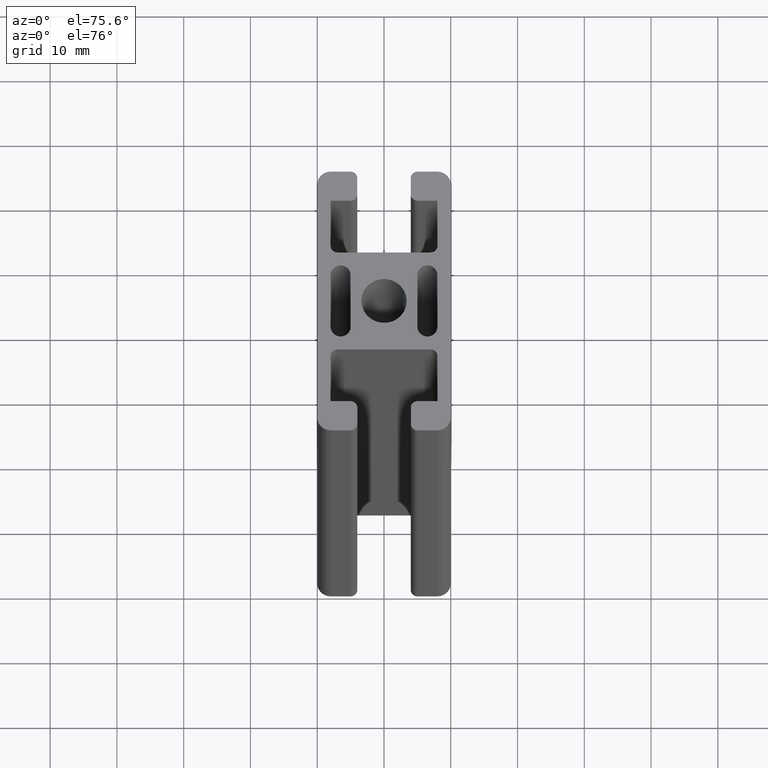
[diagram: clean part render]
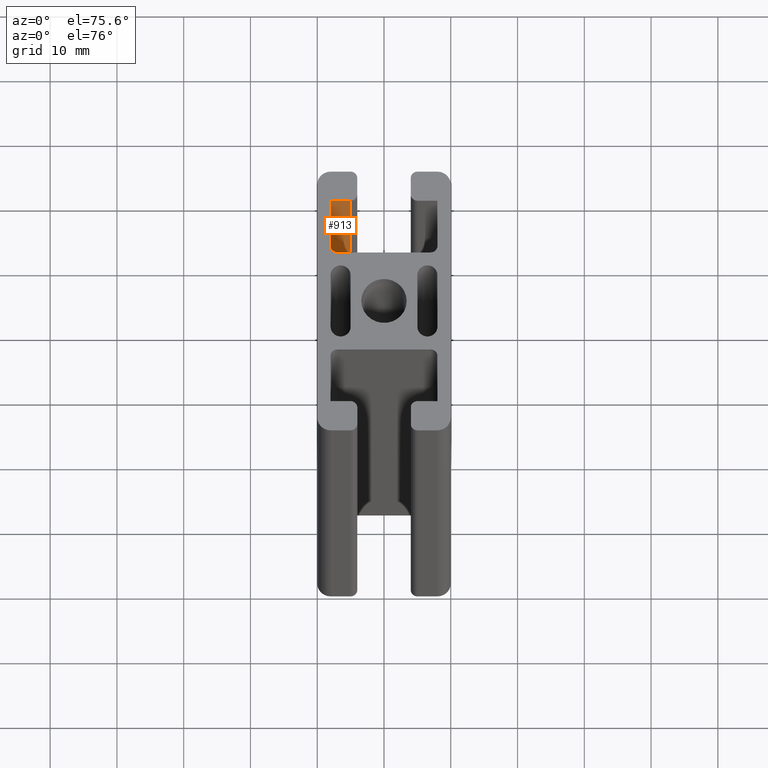
[diagram: same view with one face highlighted and labeled with its STEP entity id]
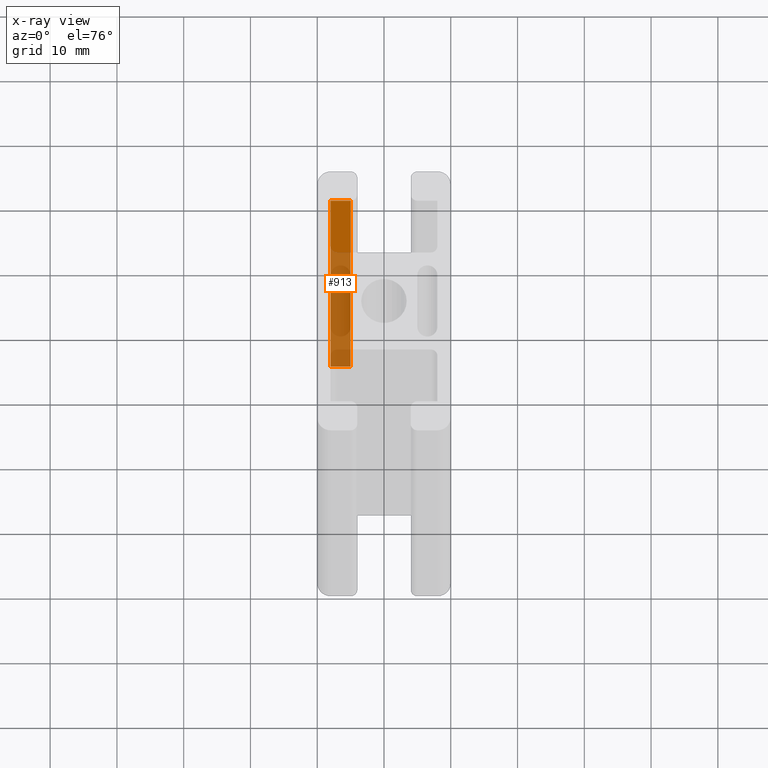
[diagram: x-ray of the same camera — body ghosted, the highlighted face saturated]
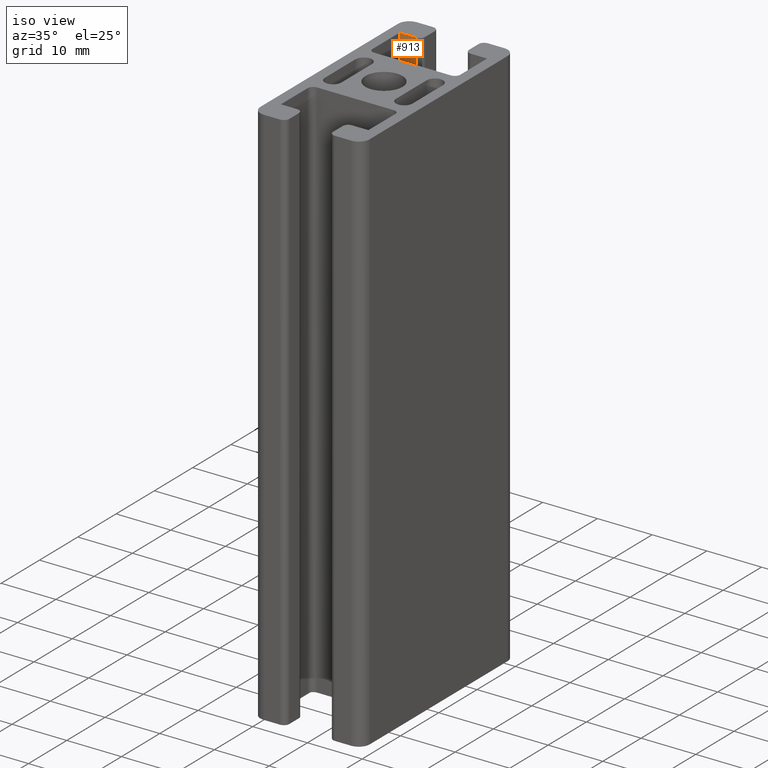
[diagram: same view with one face highlighted and labeled with its STEP entity id]
A machine part, auxiliary view. The second image highlights one B-rep face of the part: STEP entity #913.
The next image is the same camera in x-ray: the body ghosted, the highlighted face saturated — about 69% of this face is hidden behind the body in this view.
A second angle (iso view) of the same face is appended — the face is thin or edge-on in the first view.
In plain terms, the highlighted planar face has unit normal (-0, 1, 0).
Its self-contained STEP definition (entity closure, byte-faithful):
#65=LINE('',#1455,#157);
#66=LINE('',#1459,#158);
#67=LINE('',#1461,#159);
#68=LINE('',#1462,#160);
#157=VECTOR('',#1178,100.);
#158=VECTOR('',#1183,3.00000199595298);
#159=VECTOR('',#1184,100.);
#160=VECTOR('',#1185,3.00000199595298);
#211=PLANE('',#988);
#257=FACE_OUTER_BOUND('',#305,.T.);
#305=EDGE_LOOP('',(#697,#698,#699,#700));
#429=VERTEX_POINT('',#1452);
#430=VERTEX_POINT('',#1454);
#431=VERTEX_POINT('',#1458);
#432=VERTEX_POINT('',#1460);
#540=EDGE_CURVE('',#430,#429,#65,.T.);
#542=EDGE_CURVE('',#431,#429,#66,.T.);
#543=EDGE_CURVE('',#432,#431,#67,.T.);
#544=EDGE_CURVE('',#430,#432,#68,.T.);
#697=ORIENTED_EDGE('',*,*,#542,.F.);
#698=ORIENTED_EDGE('',*,*,#543,.F.);
#699=ORIENTED_EDGE('',*,*,#544,.F.);
#700=ORIENTED_EDGE('',*,*,#540,.T.);
#913=ADVANCED_FACE('',(#257),#211,.F.);
#988=AXIS2_PLACEMENT_3D('',#1457,#1181,#1182);
#1178=DIRECTION('',(0.,0.,1.));
#1181=DIRECTION('center_axis',(-2.9605927625991E-15,1.,0.));
#1182=DIRECTION('ref_axis',(0.,0.,1.));
#1183=DIRECTION('',(1.,2.9605927625991E-15,0.));
#1184=DIRECTION('',(0.,0.,1.));
#1185=DIRECTION('',(-1.,-2.9605927625991E-15,0.));
#1452=CARTESIAN_POINT('',(-4.99999800404702,15.5,100.));
#1454=CARTESIAN_POINT('',(-4.99999800404702,15.5,0.));
#1455=CARTESIAN_POINT('',(-4.99999800404702,15.5,0.));
#1457=CARTESIAN_POINT('Origin',(-8.,15.5,0.));
#1458=CARTESIAN_POINT('',(-8.,15.5,100.));
#1459=CARTESIAN_POINT('',(-4.00000000000002,15.5,100.));
#1460=CARTESIAN_POINT('',(-8.,15.5,0.));
#1461=CARTESIAN_POINT('',(-8.,15.5,0.));
#1462=CARTESIAN_POINT('',(-4.00000000000002,15.5,0.));